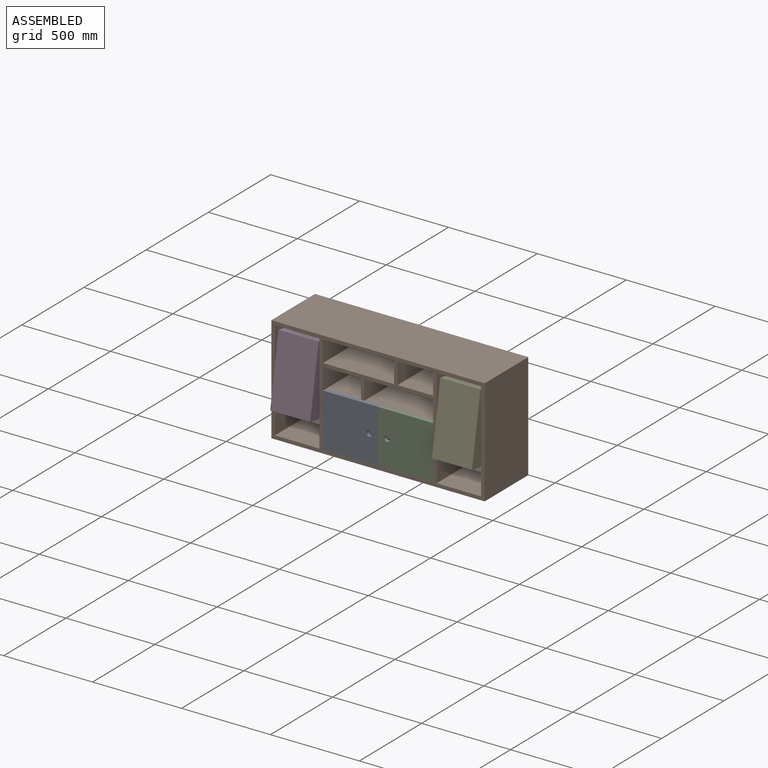
[diagram: assembled view]
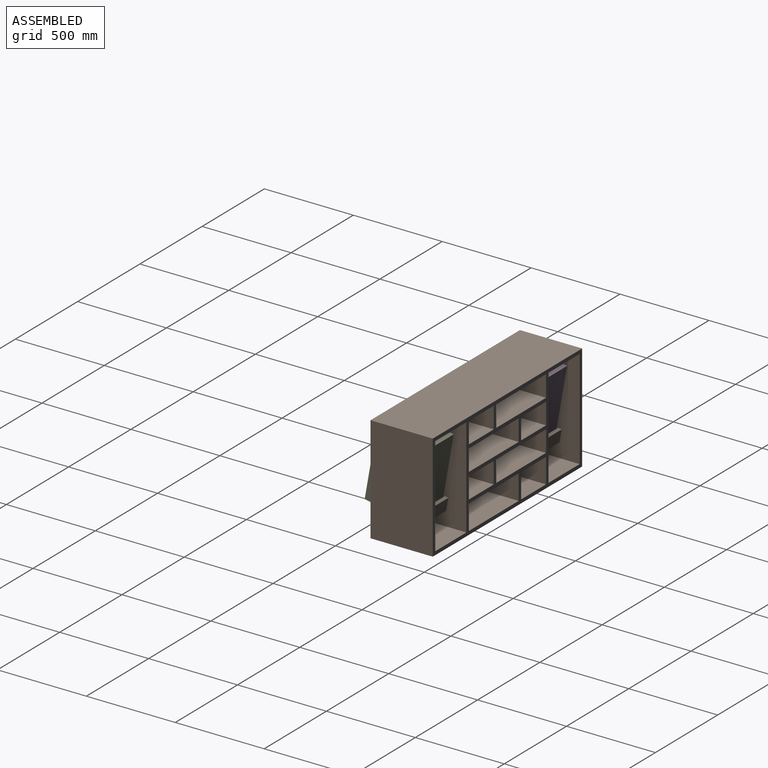
[diagram: assembled view, second angle]
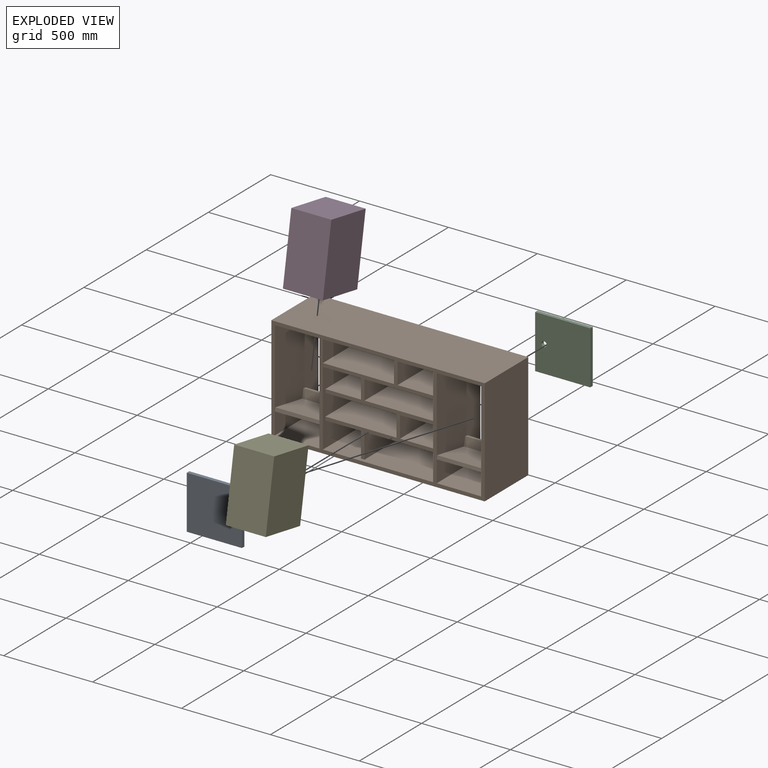
[diagram: exploded view]
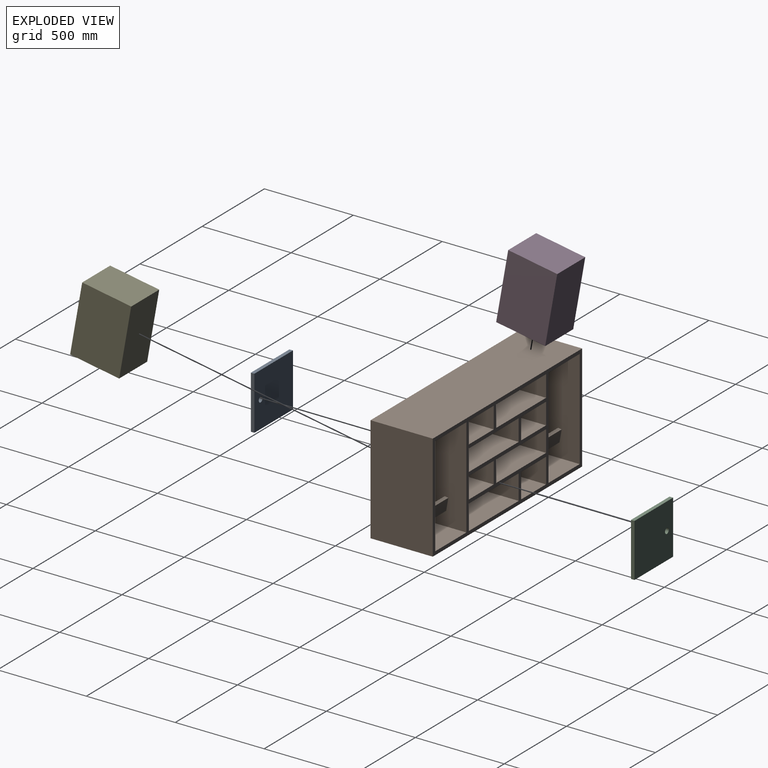
[diagram: exploded view, second angle]
ASSEMBLY  parts=5 mates=9
PART A: 7 faces, bbox 310x20x300 mm
  f0: plane 310x20mm, normal (0,0,1), area 6200mm2, adj f1,f3,f4,f5
  f1: plane 300x20mm, normal (-1,0,0), area 6000mm2, adj f0,f2,f4,f5
  f2: plane 310x20mm, normal (0,0,-1), area 6200mm2, adj f1,f3,f4,f5
  f3: plane 300x20mm, normal (1,0,0), area 6000mm2, adj f0,f2,f4,f5
  f4: plane 310x300mm, normal (0,-1,0), area 92293.1mm2, adj f0,f1,f2,f3,f6
  f5: plane 310x300mm, normal (0,1,0), area 92293.1mm2, adj f0,f1,f2,f3,f6
  f6: cylinder r=15mm len=30mm, axis (0,-1,0), area 1885mm2, adj f4,f5
PART B: 53 faces, bbox 1200x350x600 mm
  f0: plane 560x350mm, normal (-1,0,0), area 190200mm2, adj f19,f22,f24,f34,f47,f48,f49,f50
  f1: plane 560x350mm, normal (-1,0,0), area 190200mm2, adj f21,f22,f24,f31,f41,f42,f43,f44
  f2: plane 330x140mm, normal (-1,0,0), area 46200mm2, adj f14,f20,f22,f40
  f3: plane 330x140mm, normal (1,0,0), area 46200mm2, adj f4,f20,f22,f40
  f4: plane 400x330mm, normal (0,0,-1), area 132000mm2, adj f3,f17,f22,f40
  f5: plane 330x200mm, normal (0,0,1), area 66000mm2, adj f6,f17,f22,f40
  f6: plane 330x120mm, normal (1,0,0), area 39600mm2, adj f5,f7,f22,f40
  f7: plane 330x200mm, normal (0,0,-1), area 66000mm2, adj f6,f17,f22,f40
  f8: plane 400x330mm, normal (0,0,1), area 132000mm2, adj f9,f17,f22,f40
  f9: plane 330x120mm, normal (1,0,0), area 39600mm2, adj f8,f22,f35,f40
  f10: plane 330x120mm, normal (-1,0,0), area 39600mm2, adj f11,f22,f35,f40
  f11: plane 330x200mm, normal (0,0,1), area 66000mm2, adj f10,f16,f22,f40
  f12: plane 400x330mm, normal (0,0,-1), area 132000mm2, adj f13,f16,f22,f40
  f13: plane 330x120mm, normal (-1,0,0), area 39600mm2, adj f12,f15,f22,f40
  f14: plane 330x200mm, normal (0,0,-1), area 66000mm2, adj f2,f16,f22,f40
  f15: plane 400x330mm, normal (0,0,1), area 132000mm2, adj f13,f16,f22,f40
  f16: plane 420x350mm, normal (1,0,0), area 133800mm2, adj f11,f12,f14,f15,f20,f22,f24,f35
  f17: plane 420x350mm, normal (-1,0,0), area 133800mm2, adj f4,f5,f7,f8,f20,f22,f24,f35
  f18: plane 350x200mm, normal (0,0,-1), area 70000mm2, adj f22,f24,f30,f37
  f19: plane 350x250mm, normal (0,0,1), area 87500mm2, adj f0,f22,f24,f29
  f20: plane 620x350mm, normal (0,0,1), area 210400mm2, adj f2,f3,f16,f17,f22,f24,f40
  f21: plane 350x250mm, normal (0,0,1), area 87500mm2, adj f1,f22,f24,f27
  f22: plane 1200x600mm, normal (0,1,0), area 140000mm2, adj f0,f1,f2,f3,f4,f5,f6,f7
  f23: plane 600x350mm, normal (-1,0,0), area 210000mm2, adj f22,f24,f26,f33
  f24: plane 1200x600mm, normal (0,-1,0), area 107600mm2, adj f0,f1,f16,f17,f18,f19,f20,f21
  f25: plane 600x350mm, normal (1,0,0), area 210000mm2, adj f22,f24,f26,f33
  f26: plane 1200x350mm, normal (0,0,-1), area 420000mm2, adj f22,f23,f24,f25
  f27: plane 560x350mm, normal (1,0,0), area 190200mm2, adj f21,f22,f24,f31,f41,f42,f43,f44
  f28: plane 350x120mm, normal (1,0,0), area 42000mm2, adj f22,f24,f32,f39
  f29: plane 560x350mm, normal (1,0,0), area 190200mm2, adj f19,f22,f24,f34,f47,f48,f49,f50
  f30: plane 350x120mm, normal (-1,0,0), area 42000mm2, adj f18,f22,f24,f36
  f31: plane 350x250mm, normal (0,0,-1), area 87500mm2, adj f1,f22,f24,f27
  f32: plane 400x350mm, normal (0,0,-1), area 140000mm2, adj f22,f24,f28,f38
  f33: plane 1200x350mm, normal (0,0,1), area 420000mm2, adj f22,f23,f24,f25
  f34: plane 350x250mm, normal (0,0,-1), area 87500mm2, adj f0,f22,f24,f29
  f35: plane 620x350mm, normal (0,0,-1), area 210400mm2, adj f9,f10,f16,f17,f22,f24,f40
  f36: plane 350x200mm, normal (0,0,1), area 70000mm2, adj f22,f24,f30,f37
  f37: plane 350x120mm, normal (1,0,0), area 42000mm2, adj f18,f22,f24,f36
  f38: plane 350x120mm, normal (-1,0,0), area 42000mm2, adj f22,f24,f32,f39
  f39: plane 400x350mm, normal (0,0,1), area 140000mm2, adj f22,f24,f28,f38
  f40: plane 620x420mm, normal (0,-1,0), area 32400mm2, adj f2,f3,f4,f5,f6,f7,f8,f9
  f41: plane 250x68.94mm, normal (0,0.98,-0.17), area 17500mm2, adj f1,f27,f42,f45
  f42: plane 250x19.7mm, normal (0,0.17,0.98), area 5000mm2, adj f1,f27,f41,f43
  f43: plane 250x49.24mm, normal (0,-0.98,0.17), area 12500mm2, adj f1,f27,f42,f44
  f44: plane 250x216.66mm, normal (0,0.17,0.98), area 55000mm2, adj f1,f27,f43,f46
  f45: plane 250x236.35mm, normal (0,-0.17,-0.98), area 60000mm2, adj f1,f27,f41,f46
  f46: plane 250x19.7mm, normal (0,-0.98,0.17), area 5000mm2, adj f1,f27,f44,f45
  f47: plane 250x49.24mm, normal (0,-0.98,0.17), area 12500mm2, adj f0,f29,f48,f51
  f48: plane 250x19.7mm, normal (0,0.17,0.98), area 5000mm2, adj f0,f29,f47,f49
  f49: plane 250x68.94mm, normal (0,0.98,-0.17), area 17500mm2, adj f0,f29,f48,f50
  f50: plane 250x236.35mm, normal (0,-0.17,-0.98), area 60000mm2, adj f0,f29,f49,f52
  f51: plane 250x216.66mm, normal (0,0.17,0.98), area 55000mm2, adj f0,f29,f47,f52
  f52: plane 250x19.7mm, normal (0,-0.98,0.17), area 5000mm2, adj f0,f29,f50,f51
PART C: same geometry as A
PART D: 6 faces, bbox 225x280x390 mm
  f0: plane 390x225mm, normal (0,-1,0), area 87750mm2, adj f1,f3,f4,f5
  f1: plane 390x280mm, normal (1,0,0), area 109200mm2, adj f0,f2,f4,f5
  f2: plane 390x225mm, normal (0,1,0), area 87750mm2, adj f1,f3,f4,f5
  f3: plane 390x280mm, normal (-1,0,0), area 109200mm2, adj f0,f2,f4,f5
  f4: plane 280x225mm, normal (0,0,1), area 63000mm2, adj f0,f1,f2,f3
  f5: plane 280x225mm, normal (0,0,-1), area 63000mm2, adj f0,f1,f2,f3
PART E: same geometry as D
PLACE A t=(-878.47,-368.52,76)mm
PLACE B t=(-723.47,-213.52,-94)mm fixed
PLACE C rot(axis=(0,0,1),180deg) t=(-568.47,-388.52,76)mm
PLACE D rot(axis=(-1,0,0),10deg) t=(-1178.47,-306.27,53.48)mm
PLACE E rot(axis=(-1,0,0),10deg) t=(-268.47,-306.27,53.48)mm
MATE planar A.f4 <-> B.f24  axis (0,-1,0) through (-879.27,-388.52,76)mm
MATE planar D.f5 <-> B.f44  axis (0,-0.17,-0.98) through (-1178.47,-306.27,53.48)mm
MATE planar C.f1 <-> B.f17  axis (1,0,0) through (-413.47,-378.52,76)mm
MATE fastened C.f5 <-> B.f24  axis (0,-1,0) through (-413.47,-388.52,-74)mm
MATE planar E.f2 <-> B.f47  axis (0,0.98,-0.17) through (-268.47,-134.53,221.2)mm
MATE fastened A.f4 <-> B.f24  axis (0,-1,0) through (-1033.47,-388.52,-74)mm
MATE planar E.f5 <-> B.f51  axis (0,-0.17,-0.98) through (-268.47,-306.27,53.48)mm
MATE planar C.f5 <-> B.f24  axis (0,-1,0) through (-567.66,-388.52,76)mm
MATE planar D.f2 <-> B.f43  axis (0,0.98,-0.17) through (-1178.47,-134.53,221.2)mm
